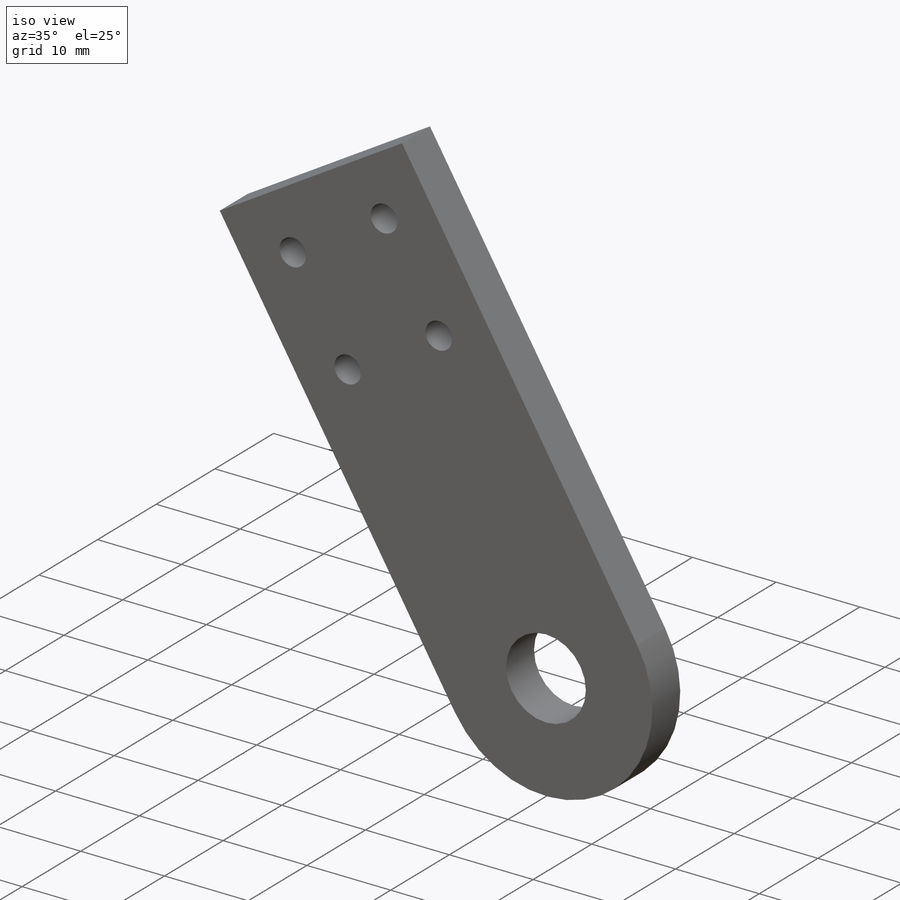
[diagram: iso view]
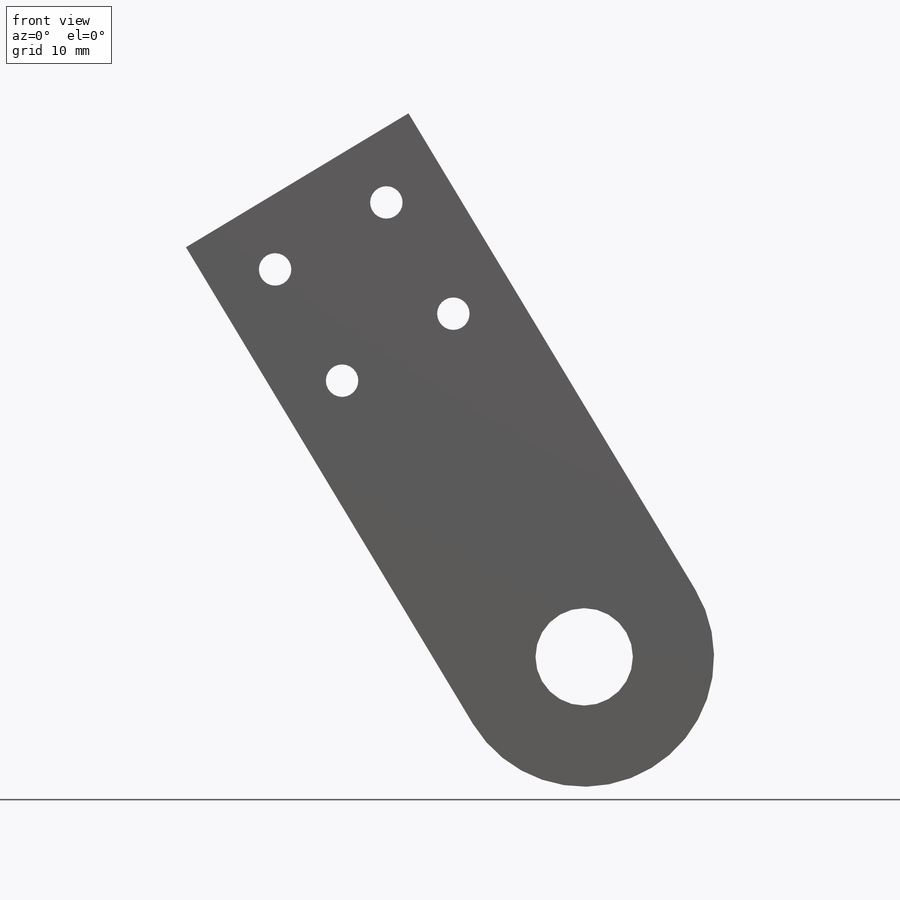
[diagram: front view]
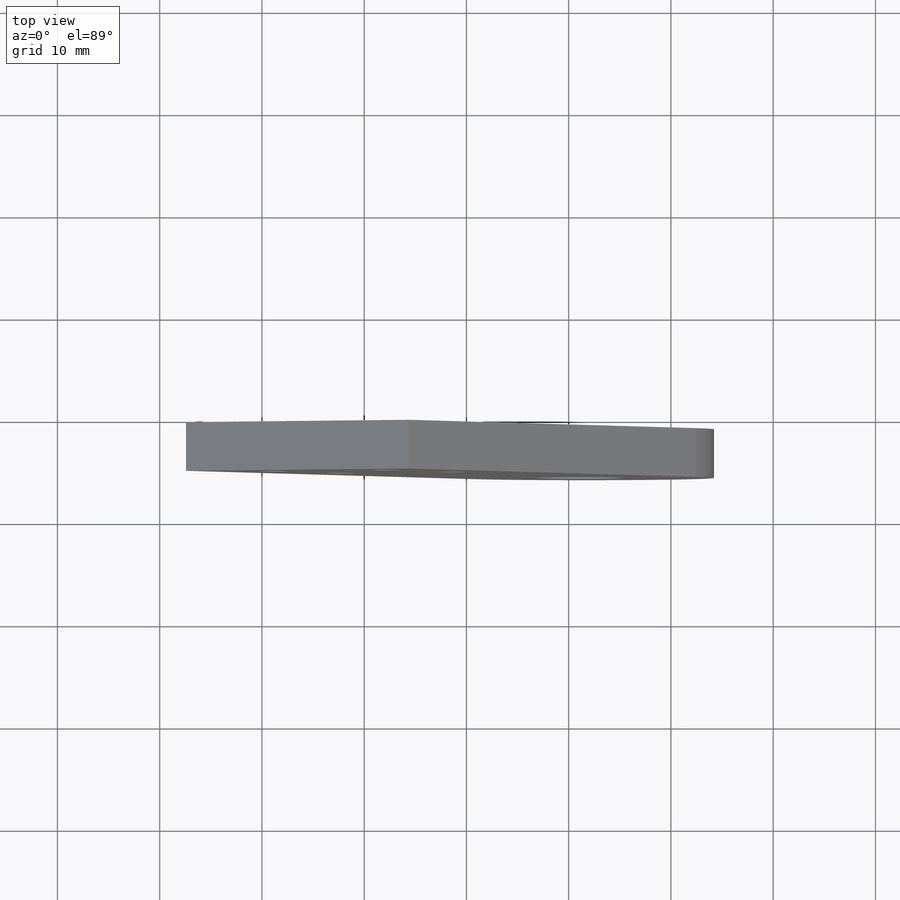
[diagram: top view]
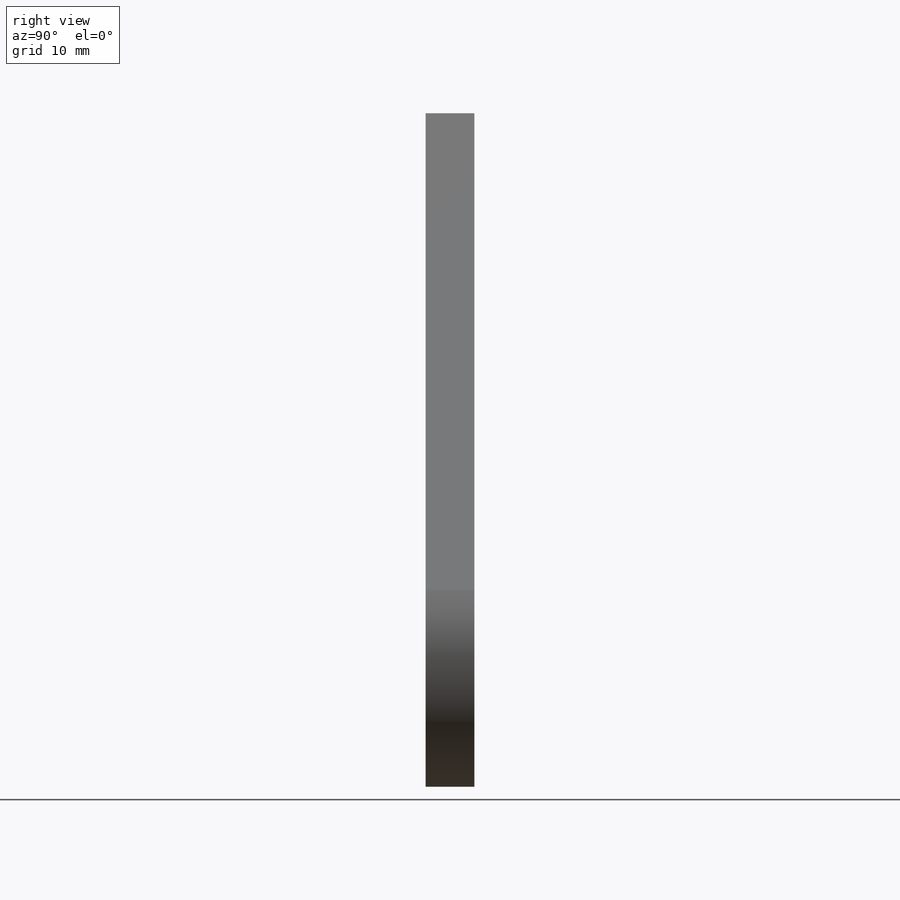
[diagram: right view]
SOLIDWORKS PART (.sldprt)
format: sldprt  version: not decoded by parser v0  size: 202,240 bytes
history: native  units: mm
features: sketch x5, hole x2, material x1, extrude x1 (+13 scaffold rows collapsed)
feature tree (22):
  scaffold x13  (default folders/planes/origin — collapsed)
  material  "Material <not specified>"
  sketch  "Sketch1"  dims[c1.D1=9.525mm c1.D3=25.4mm c1.D4=9.525mm c2.D1=55.1434mm c2.D2=55.9816mm c2.D3=~22.776112mm c2.D4=~23.381469mm c2.D5=25.4mm]
  extrude  "Boss-Extrude1"  Depth=4.7625mm
  hole  "1/8 (0.125) Diameter Hole1"  Diameter=3.175mm Depth=4.7625mm
  sketch  "Sketch3"  dims[D1=6.35mm D2=6.35mm D3=12.7mm D4=12.7mm D5=6.35mm D6=6.35mm D7=6.35mm D8=6.35mm]
  sketch  "Sketch2"  dims[hole-wizard template sketch: 60 standard entries collapsed; hole parameters kept: c18.Thru Hole Depth=4.7625mm]
  hole  "3/8 (0.375) Diameter Hole1"  Diameter=9.525mm Depth=4.7625mm
  sketch  "Sketch5"
  sketch  "Sketch4"  dims[hole-wizard template sketch: 60 standard entries collapsed; hole parameters kept: c18.Thru Hole Depth=4.7625mm]
decode coverage: 7 of 8 modeling features carry decoded parameters
note: ~ marks probable driven/reference dimensions
note: suppression state not decoded; provenance and decode notes live in map.json
